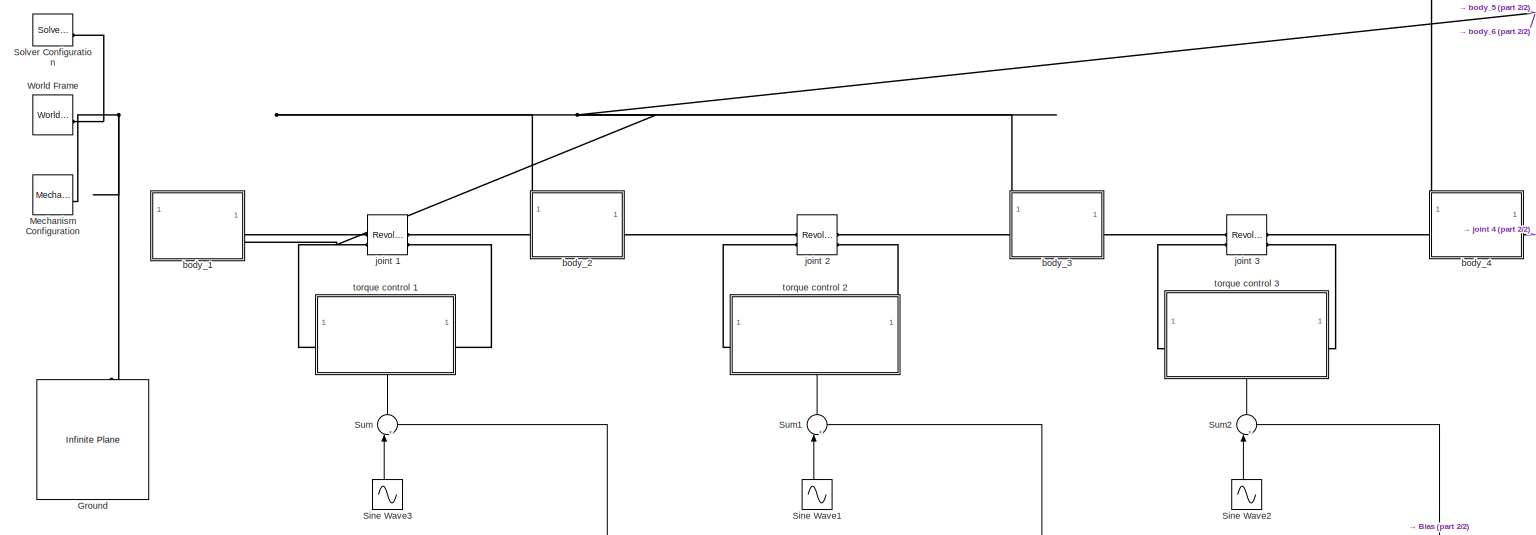
[diagram: root canvas - part 1/2, middle left region]
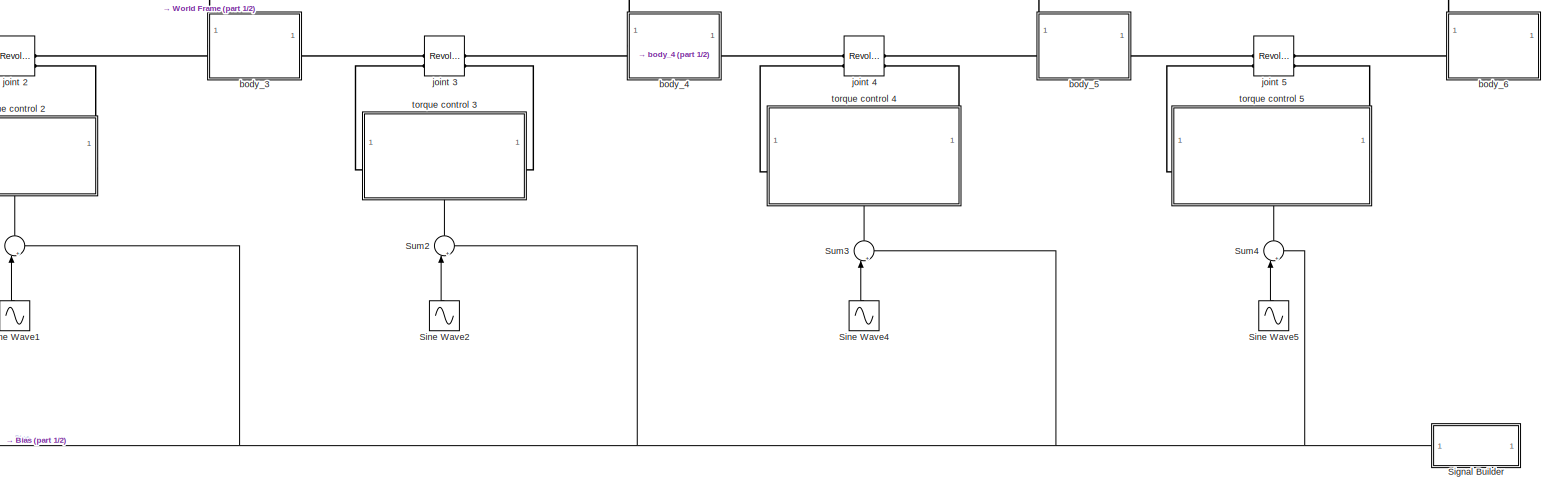
[diagram: root canvas - part 2/2, bottom center region]
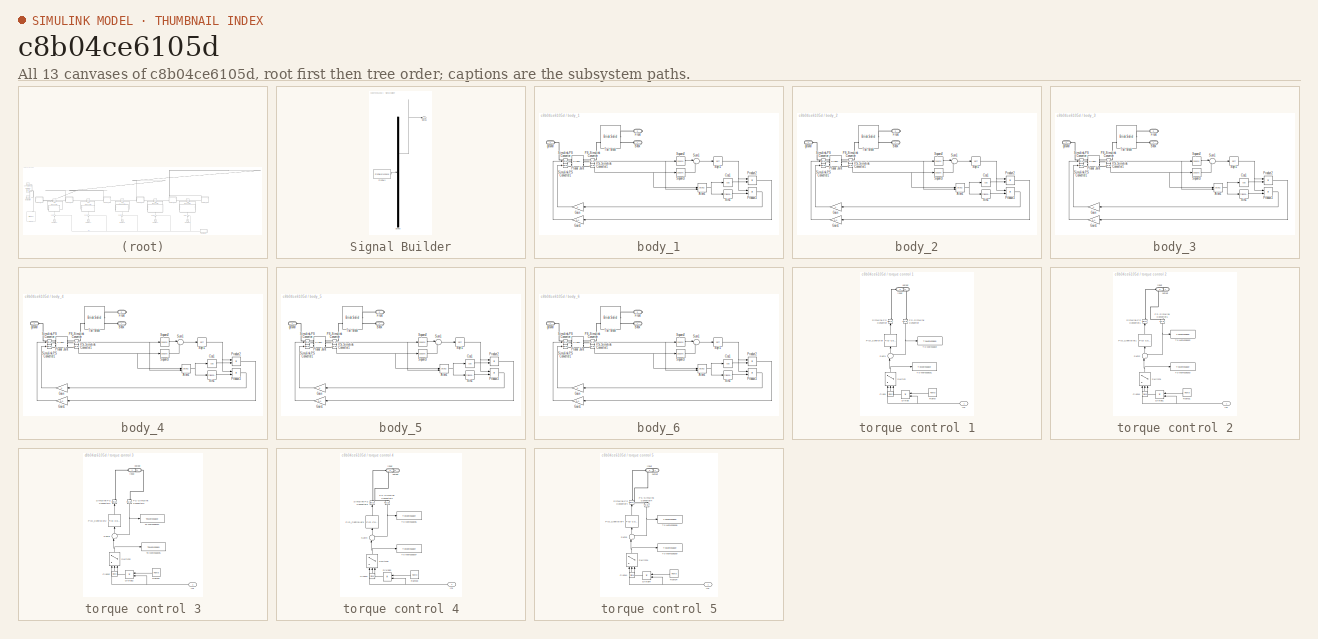
[diagram: thumbnail index - all 13 canvases of the model, root first then tree order]
MODEL slx_c8b04ce6105d
KIND model
CONFIG AbsTol = 1e-3
CONFIG EnableMultiTasking = on
CONFIG FixedStep = auto
CONFIG MaxStep = auto
CONFIG MinStep = auto
CONFIG RelTol = 1e-5
CONFIG SampleTimeConstraint = Unconstrained
CONFIG SolverName = VariableStepAuto
CONFIG StartTime = 0.0
CONFIG StopTime = 300
BLOCK [Reference] Ground  REF=sm_lib/Curves and Surfaces/Infinite Plane
  NameLocation = left
  SourceBlock = sm_lib/Curves and Surfaces/Infinite Plane
  SourceType = Infinite Plane
BLOCK [Reference] Mechanism Configuration  REF=sm_lib/Utilities/Mechanism
Configuration
  SourceBlock = sm_lib/Utilities/Mechanism\nConfiguration
  SourceType = Mechanism\nConfiguration
BLOCK [SubSystem] Signal Builder
  ClipboardFcn = sigbuilder_block('clipboard');
  CloseFcn = sigbuilder_block('close');
  ContinueFcn = sigbuilder_block('continue');
  CopyFcn = sigbuilder_block('copy');
  DeleteFcn = sigbuilder_block('delete');
  LoadFcn = sigbuilder_block('load');
  MaskHideContents = on
  ModelCloseFcn = sigbuilder_block('modelClose');
  NameChangeFcn = sigbuilder_block('namechange');
  NameLocation = top
  OpenFcn = sigbuilder_block('open',[440.4 166.8 550.8 400.2 ]);
  PauseFcn = sigbuilder_block('pause');
  PreSaveFcn = sigbuilder_block('preSave');
  StartFcn = sigbuilder_block('start');
  StopFcn = sigbuilder_block('stop');
  Tag = STV Subsys
BLOCK [Demux] Signal Builder/Demux
  DisplayOption = none
  Outputs = 1
  Tag = STV Demux
BLOCK [FromWorkspace] Signal Builder/FromWs
  Tag = STV FromWs
  VariableName = tuvar
BLOCK [Outport] Signal Builder/Signal 1
  Tag = STV Outport
BLOCK [Sin] Sine Wave1
  Amplitude = 40*pi/180
  Frequency = 2.5
  NameLocation = right
  Phase = 60*pi/180
  SampleTime = 0.01
BLOCK [Sin] Sine Wave2
  Amplitude = 40*pi/180
  Frequency = 2.5
  NameLocation = right
  Phase = 120*pi/180
  SampleTime = 0.01
BLOCK [Sin] Sine Wave3
  Amplitude = 40*pi/180
  Frequency = 2.5
  NameLocation = right
  SampleTime = 0.01
BLOCK [Sin] Sine Wave4
  Amplitude = 40*pi/180
  Frequency = 2.5
  NameLocation = right
  Phase = pi
  SampleTime = 0.01
BLOCK [Sin] Sine Wave5
  Amplitude = 40*pi/180
  Frequency = 2.5
  NameLocation = right
  Phase = 240*pi/180
  SampleTime = 0.01
BLOCK [Reference] Solver Configuration  REF=nesl_utility/Solver
Configuration
  SourceBlock = nesl_utility/Solver\nConfiguration
  SourceType = Solver\nConfiguration
BLOCK [Sum] Sum
  Inputs = |++
  NameLocation = right
BLOCK [Sum] Sum1
  Inputs = |++
  NameLocation = right
BLOCK [Sum] Sum2
  Inputs = |++
  NameLocation = right
BLOCK [Sum] Sum3
  Inputs = |++
  NameLocation = right
BLOCK [Sum] Sum4
  Inputs = |++
  NameLocation = right
BLOCK [Reference] World Frame  REF=sm_lib/Frames and
Transforms/World Frame
  SourceBlock = sm_lib/Frames and\nTransforms/World Frame
  SourceType = World Frame
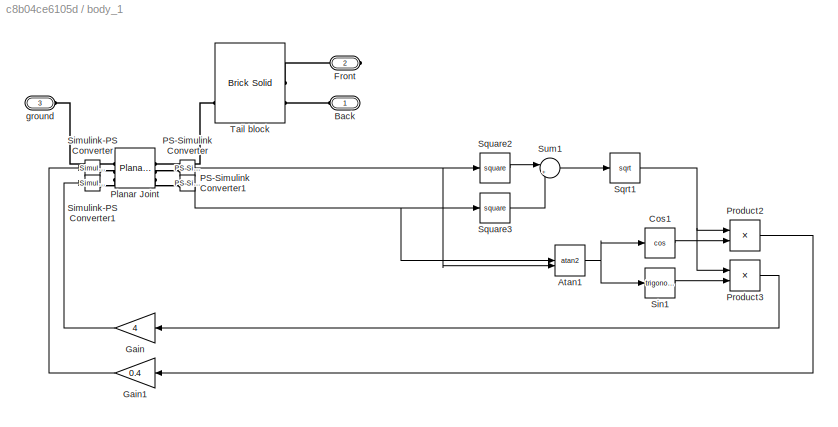
BLOCK [SubSystem] body_1
  PortSchema = {"entries":[{"content":{"sides":[{"content":{"connectorIds":["LConn1"]},"type":"ConnectorPlacement.EquallySpacedRectSide","uuid":"cfd545d0-0ca8-493e-9d9c-9574918c6216"},{"content":{"connectorIds":["RConn1"],"side":"RIGHT"},"type":"ConnectorPlacement.EquallySpacedRectSide","uuid":"f4db1f33-ebca-4648-9629-9a34821dbae4"},{"content":{"connectorIds":["LConn2"],"side":"TOP"},"type":"ConnectorPlacement.E...<+253ch>  <repeated x6 — deduplicated; at blocks: body_1, body_2, body_3, body_4, body_5, body_6>
BLOCK [Trigonometry] body_1/Atan1
  Operator = atan2
BLOCK [PMIOPort] body_1/Back
  Side = Left
BLOCK [Trigonometry] body_1/Cos1
  Operator = cos
BLOCK [PMIOPort] body_1/Front
  Port = 2
  Side = Right
BLOCK [Gain] body_1/Gain
  Gain = 4
  NameLocation = top
BLOCK [Gain] body_1/Gain1
  Gain = 0.4
  NameLocation = top
BLOCK [Reference] body_1/PS-Simulink Converter  REF=nesl_utility/PS-Simulink
Converter
  SourceBlock = nesl_utility/PS-Simulink\nConverter
  SourceType = PS-Simulink\nConverter
BLOCK [Reference] body_1/PS-Simulink Converter1  REF=nesl_utility/PS-Simulink
Converter
  SourceBlock = nesl_utility/PS-Simulink\nConverter
  SourceType = PS-Simulink\nConverter
BLOCK [Reference] body_1/Planar Joint  REF=sm_lib/Joints/Planar Joint
  SourceBlock = sm_lib/Joints/Planar Joint
  SourceType = Planar Joint
BLOCK [Product] body_1/Product2
BLOCK [Product] body_1/Product3
BLOCK [Reference] body_1/Simulink-PS Converter  REF=nesl_utility/Simulink-PS
Converter
  SourceBlock = nesl_utility/Simulink-PS\nConverter
  SourceType = Simulink-PS\nConverter
BLOCK [Reference] body_1/Simulink-PS Converter1  REF=nesl_utility/Simulink-PS
Converter
  SourceBlock = nesl_utility/Simulink-PS\nConverter
  SourceType = Simulink-PS\nConverter
BLOCK [Trigonometry] body_1/Sin1
BLOCK [Sqrt] body_1/Sqrt1
BLOCK [Math] body_1/Square2
  Operator = square
BLOCK [Math] body_1/Square3
  Operator = square
BLOCK [Sum] body_1/Sum1
  Inputs = |++
BLOCK [Reference] body_1/Tail block  REF=sm_lib/Body Elements/Brick Solid
  SourceBlock = sm_lib/Body Elements/Brick Solid
  SourceType = Brick Solid
BLOCK [PMIOPort] body_1/ground
  Port = 3
  Side = Left
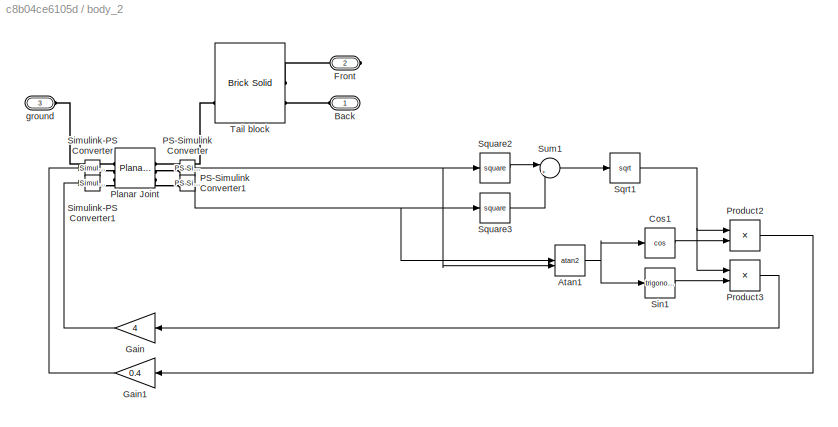
BLOCK [SubSystem] body_2
BLOCK [Trigonometry] body_2/Atan1
  Operator = atan2
BLOCK [PMIOPort] body_2/Back
  Side = Left
BLOCK [Trigonometry] body_2/Cos1
  Operator = cos
BLOCK [PMIOPort] body_2/Front
  Port = 2
  Side = Right
BLOCK [Gain] body_2/Gain
  Gain = 4
  NameLocation = top
BLOCK [Gain] body_2/Gain1
  Gain = 0.4
  NameLocation = top
BLOCK [Reference] body_2/PS-Simulink Converter  REF=nesl_utility/PS-Simulink
Converter
  SourceBlock = nesl_utility/PS-Simulink\nConverter
  SourceType = PS-Simulink\nConverter
BLOCK [Reference] body_2/PS-Simulink Converter1  REF=nesl_utility/PS-Simulink
Converter
  SourceBlock = nesl_utility/PS-Simulink\nConverter
  SourceType = PS-Simulink\nConverter
BLOCK [Reference] body_2/Planar Joint  REF=sm_lib/Joints/Planar Joint
  SourceBlock = sm_lib/Joints/Planar Joint
  SourceType = Planar Joint
BLOCK [Product] body_2/Product2
BLOCK [Product] body_2/Product3
BLOCK [Reference] body_2/Simulink-PS Converter  REF=nesl_utility/Simulink-PS
Converter
  SourceBlock = nesl_utility/Simulink-PS\nConverter
  SourceType = Simulink-PS\nConverter
BLOCK [Reference] body_2/Simulink-PS Converter1  REF=nesl_utility/Simulink-PS
Converter
  SourceBlock = nesl_utility/Simulink-PS\nConverter
  SourceType = Simulink-PS\nConverter
BLOCK [Trigonometry] body_2/Sin1
BLOCK [Sqrt] body_2/Sqrt1
BLOCK [Math] body_2/Square2
  Operator = square
BLOCK [Math] body_2/Square3
  Operator = square
BLOCK [Sum] body_2/Sum1
  Inputs = |++
BLOCK [Reference] body_2/Tail block  REF=sm_lib/Body Elements/Brick Solid
  SourceBlock = sm_lib/Body Elements/Brick Solid
  SourceType = Brick Solid
BLOCK [PMIOPort] body_2/ground
  Port = 3
  Side = Left
BLOCK [SubSystem] body_3
BLOCK [Trigonometry] body_3/Atan1
  Operator = atan2
BLOCK [PMIOPort] body_3/Back
  Side = Left
BLOCK [Trigonometry] body_3/Cos1
  Operator = cos
BLOCK [PMIOPort] body_3/Front
  Port = 2
  Side = Right
BLOCK [Gain] body_3/Gain
  Gain = 4
  NameLocation = top
BLOCK [Gain] body_3/Gain1
  Gain = 0.4
  NameLocation = top
BLOCK [Reference] body_3/PS-Simulink Converter  REF=nesl_utility/PS-Simulink
Converter
  SourceBlock = nesl_utility/PS-Simulink\nConverter
  SourceType = PS-Simulink\nConverter
BLOCK [Reference] body_3/PS-Simulink Converter1  REF=nesl_utility/PS-Simulink
Converter
  SourceBlock = nesl_utility/PS-Simulink\nConverter
  SourceType = PS-Simulink\nConverter
BLOCK [Reference] body_3/Planar Joint  REF=sm_lib/Joints/Planar Joint
  SourceBlock = sm_lib/Joints/Planar Joint
  SourceType = Planar Joint
BLOCK [Product] body_3/Product2
BLOCK [Product] body_3/Product3
BLOCK [Reference] body_3/Simulink-PS Converter  REF=nesl_utility/Simulink-PS
Converter
  SourceBlock = nesl_utility/Simulink-PS\nConverter
  SourceType = Simulink-PS\nConverter
BLOCK [Reference] body_3/Simulink-PS Converter1  REF=nesl_utility/Simulink-PS
Converter
  SourceBlock = nesl_utility/Simulink-PS\nConverter
  SourceType = Simulink-PS\nConverter
BLOCK [Trigonometry] body_3/Sin1
BLOCK [Sqrt] body_3/Sqrt1
BLOCK [Math] body_3/Square2
  Operator = square
BLOCK [Math] body_3/Square3
  Operator = square
BLOCK [Sum] body_3/Sum1
  Inputs = |++
BLOCK [Reference] body_3/Tail block  REF=sm_lib/Body Elements/Brick Solid
  SourceBlock = sm_lib/Body Elements/Brick Solid
  SourceType = Brick Solid
BLOCK [PMIOPort] body_3/ground
  Port = 3
  Side = Left
BLOCK [SubSystem] body_4
BLOCK [Trigonometry] body_4/Atan1
  Operator = atan2
BLOCK [PMIOPort] body_4/Back
  Side = Left
BLOCK [Trigonometry] body_4/Cos1
  Operator = cos
BLOCK [PMIOPort] body_4/Front
  Port = 2
  Side = Right
BLOCK [Gain] body_4/Gain
  Gain = 4
  NameLocation = top
BLOCK [Gain] body_4/Gain1
  Gain = 0.4
  NameLocation = top
BLOCK [Reference] body_4/PS-Simulink Converter  REF=nesl_utility/PS-Simulink
Converter
  SourceBlock = nesl_utility/PS-Simulink\nConverter
  SourceType = PS-Simulink\nConverter
BLOCK [Reference] body_4/PS-Simulink Converter1  REF=nesl_utility/PS-Simulink
Converter
  SourceBlock = nesl_utility/PS-Simulink\nConverter
  SourceType = PS-Simulink\nConverter
BLOCK [Reference] body_4/Planar Joint  REF=sm_lib/Joints/Planar Joint
  SourceBlock = sm_lib/Joints/Planar Joint
  SourceType = Planar Joint
BLOCK [Product] body_4/Product2
BLOCK [Product] body_4/Product3
BLOCK [Reference] body_4/Simulink-PS Converter  REF=nesl_utility/Simulink-PS
Converter
  SourceBlock = nesl_utility/Simulink-PS\nConverter
  SourceType = Simulink-PS\nConverter
BLOCK [Reference] body_4/Simulink-PS Converter1  REF=nesl_utility/Simulink-PS
Converter
  SourceBlock = nesl_utility/Simulink-PS\nConverter
  SourceType = Simulink-PS\nConverter
BLOCK [Trigonometry] body_4/Sin1
BLOCK [Sqrt] body_4/Sqrt1
BLOCK [Math] body_4/Square2
  Operator = square
BLOCK [Math] body_4/Square3
  Operator = square
BLOCK [Sum] body_4/Sum1
  Inputs = |++
BLOCK [Reference] body_4/Tail block  REF=sm_lib/Body Elements/Brick Solid
  SourceBlock = sm_lib/Body Elements/Brick Solid
  SourceType = Brick Solid
BLOCK [PMIOPort] body_4/ground
  Port = 3
  Side = Left
BLOCK [SubSystem] body_5
BLOCK [Trigonometry] body_5/Atan1
  Operator = atan2
BLOCK [PMIOPort] body_5/Back
  Side = Left
BLOCK [Trigonometry] body_5/Cos1
  Operator = cos
BLOCK [PMIOPort] body_5/Front
  Port = 2
  Side = Right
BLOCK [Gain] body_5/Gain
  Gain = 4
  NameLocation = top
BLOCK [Gain] body_5/Gain1
  Gain = 0.4
  NameLocation = top
BLOCK [Reference] body_5/PS-Simulink Converter  REF=nesl_utility/PS-Simulink
Converter
  SourceBlock = nesl_utility/PS-Simulink\nConverter
  SourceType = PS-Simulink\nConverter
BLOCK [Reference] body_5/PS-Simulink Converter1  REF=nesl_utility/PS-Simulink
Converter
  SourceBlock = nesl_utility/PS-Simulink\nConverter
  SourceType = PS-Simulink\nConverter
BLOCK [Reference] body_5/Planar Joint  REF=sm_lib/Joints/Planar Joint
  SourceBlock = sm_lib/Joints/Planar Joint
  SourceType = Planar Joint
BLOCK [Product] body_5/Product2
BLOCK [Product] body_5/Product3
BLOCK [Reference] body_5/Simulink-PS Converter  REF=nesl_utility/Simulink-PS
Converter
  SourceBlock = nesl_utility/Simulink-PS\nConverter
  SourceType = Simulink-PS\nConverter
BLOCK [Reference] body_5/Simulink-PS Converter1  REF=nesl_utility/Simulink-PS
Converter
  SourceBlock = nesl_utility/Simulink-PS\nConverter
  SourceType = Simulink-PS\nConverter
BLOCK [Trigonometry] body_5/Sin1
BLOCK [Sqrt] body_5/Sqrt1
BLOCK [Math] body_5/Square2
  Operator = square
BLOCK [Math] body_5/Square3
  Operator = square
BLOCK [Sum] body_5/Sum1
  Inputs = |++
BLOCK [Reference] body_5/Tail block  REF=sm_lib/Body Elements/Brick Solid
  SourceBlock = sm_lib/Body Elements/Brick Solid
  SourceType = Brick Solid
BLOCK [PMIOPort] body_5/ground
  Port = 3
  Side = Left
BLOCK [SubSystem] body_6
BLOCK [Trigonometry] body_6/Atan1
  Operator = atan2
BLOCK [PMIOPort] body_6/Back
  Side = Left
BLOCK [Trigonometry] body_6/Cos1
  Operator = cos
BLOCK [PMIOPort] body_6/Front
  Port = 2
  Side = Right
BLOCK [Gain] body_6/Gain
  Gain = 4
  NameLocation = top
BLOCK [Gain] body_6/Gain1
  Gain = 0.4
  NameLocation = top
BLOCK [Reference] body_6/PS-Simulink Converter  REF=nesl_utility/PS-Simulink
Converter
  SourceBlock = nesl_utility/PS-Simulink\nConverter
  SourceType = PS-Simulink\nConverter
BLOCK [Reference] body_6/PS-Simulink Converter1  REF=nesl_utility/PS-Simulink
Converter
  SourceBlock = nesl_utility/PS-Simulink\nConverter
  SourceType = PS-Simulink\nConverter
BLOCK [Reference] body_6/Planar Joint  REF=sm_lib/Joints/Planar Joint
  SourceBlock = sm_lib/Joints/Planar Joint
  SourceType = Planar Joint
BLOCK [Product] body_6/Product2
BLOCK [Product] body_6/Product3
BLOCK [Reference] body_6/Simulink-PS Converter  REF=nesl_utility/Simulink-PS
Converter
  SourceBlock = nesl_utility/Simulink-PS\nConverter
  SourceType = Simulink-PS\nConverter
BLOCK [Reference] body_6/Simulink-PS Converter1  REF=nesl_utility/Simulink-PS
Converter
  SourceBlock = nesl_utility/Simulink-PS\nConverter
  SourceType = Simulink-PS\nConverter
BLOCK [Trigonometry] body_6/Sin1
BLOCK [Sqrt] body_6/Sqrt1
BLOCK [Math] body_6/Square2
  Operator = square
BLOCK [Math] body_6/Square3
  Operator = square
BLOCK [Sum] body_6/Sum1
  Inputs = |++
BLOCK [Reference] body_6/Tail block  REF=sm_lib/Body Elements/Brick Solid
  SourceBlock = sm_lib/Body Elements/Brick Solid
  SourceType = Brick Solid
BLOCK [PMIOPort] body_6/ground
  Port = 3
  Side = Left
BLOCK [Reference] joint 1  REF=sm_lib/Joints/Revolute Joint
  SourceBlock = sm_lib/Joints/Revolute Joint
  SourceType = Revolute Joint
BLOCK [Reference] joint 2  REF=sm_lib/Joints/Revolute Joint
  SourceBlock = sm_lib/Joints/Revolute Joint
  SourceType = Revolute Joint
BLOCK [Reference] joint 3  REF=sm_lib/Joints/Revolute Joint
  SourceBlock = sm_lib/Joints/Revolute Joint
  SourceType = Revolute Joint
BLOCK [Reference] joint 4  REF=sm_lib/Joints/Revolute Joint
  SourceBlock = sm_lib/Joints/Revolute Joint
  SourceType = Revolute Joint
BLOCK [Reference] joint 5  REF=sm_lib/Joints/Revolute Joint
  SourceBlock = sm_lib/Joints/Revolute Joint
  SourceType = Revolute Joint
BLOCK [SubSystem] torque control 1
  PortSchema = {"entries":[{"content":{"sides":[{"content":{"connectorIds":["LConn1"]},"type":"ConnectorPlacement.EquallySpacedRectSide","uuid":"c3b10f57-dda1-40d5-9599-b5ff34e42a81"},{"content":{"connectorIds":["RConn1"],"side":"RIGHT"},"type":"ConnectorPlacement.EquallySpacedRectSide","uuid":"f851f931-19d5-4ec6-a78c-ff43011b4c5e"},{"content":{"connectorIds":[],"side":"TOP"},"type":"ConnectorPlacement.EquallySp...<+394ch>
BLOCK [Clock] torque control 1/Clock
  NameLocation = right
BLOCK [Product] torque control 1/Divide
  Inputs = **
  NameLocation = top
BLOCK [Inport] torque control 1/In1
BLOCK [Reference] torque control 1/PID_Controller  REF=slpidlib/PID Controller
  LibrarySourceBlock = simulink/Continuous/PID Controller
  NameLocation = right
  SourceBlock = slpidlib/PID Controller
  SourceType = PID 1dof
BLOCK [Reference] torque control 1/PS-Simulink Converter  REF=nesl_utility/PS-Simulink
Converter
  NameLocation = left
  SourceBlock = nesl_utility/PS-Simulink\nConverter
  SourceType = PS-Simulink\nConverter
BLOCK [Reference] torque control 1/Ramp  REF=simulink/Sources/Ramp
  NameLocation = top
  SourceBlock = simulink/Sources/Ramp
  SourceType = Ramp
BLOCK [Reference] torque control 1/Simulink-PS Converter  REF=nesl_utility/Simulink-PS
Converter
  NameLocation = right
  SourceBlock = nesl_utility/Simulink-PS\nConverter
  SourceType = Simulink-PS\nConverter
BLOCK [Sum] torque control 1/Sum1
  Inputs = |+-
  NameLocation = right
BLOCK [Switch] torque control 1/Switch
  InputSameDT = off
  NameLocation = right
  SaturateOnIntegerOverflow = off
  Threshold = 2
BLOCK [ToWorkspace] torque control 1/To Workspace
  FixptAsFi = on
  MaxDataPoints = inf
  SampleTime = -1
  SaveFormat = Timeseries
  VariableName = pos1
BLOCK [ToWorkspace] torque control 1/To Workspace1
  FixptAsFi = on
  MaxDataPoints = inf
  SampleTime = -1
  SaveFormat = Timeseries
  VariableName = des1
BLOCK [PMIOPort] torque control 1/input
  Port = 2
  Side = Right
BLOCK [PMIOPort] torque control 1/output
  Side = Left
BLOCK [SubSystem] torque control 2
  PortSchema = {"entries":[{"content":{"sides":[{"content":{"connectorIds":["LConn1"]},"type":"ConnectorPlacement.EquallySpacedRectSide","uuid":"d3b18d83-77b3-4cd3-8376-33c235fde2fc"},{"content":{"connectorIds":["RConn1"],"side":"RIGHT"},"type":"ConnectorPlacement.EquallySpacedRectSide","uuid":"bef515f5-fd6e-4dac-9d9f-2e7fb6963021"},{"content":{"connectorIds":[],"side":"TOP"},"type":"ConnectorPlacement.EquallySp...<+394ch>  <repeated x3 — deduplicated; at blocks: torque control 2, torque control 4, torque control 5>
BLOCK [Clock] torque control 2/Clock1
  NameLocation = right
BLOCK [Product] torque control 2/Divide1
  Inputs = **
  NameLocation = top
BLOCK [Inport] torque control 2/In1
BLOCK [Reference] torque control 2/PID_Controller1  REF=slpidlib/PID Controller
  LibrarySourceBlock = simulink/Continuous/PID Controller
  NameLocation = right
  SourceBlock = slpidlib/PID Controller
  SourceType = PID 1dof
BLOCK [Reference] torque control 2/PS-Simulink Converter1  REF=nesl_utility/PS-Simulink
Converter
  NameLocation = left
  SourceBlock = nesl_utility/PS-Simulink\nConverter
  SourceType = PS-Simulink\nConverter
BLOCK [Reference] torque control 2/Ramp1  REF=simulink/Sources/Ramp
  NameLocation = top
  SourceBlock = simulink/Sources/Ramp
  SourceType = Ramp
BLOCK [Reference] torque control 2/Simulink-PS Converter1  REF=nesl_utility/Simulink-PS
Converter
  NameLocation = right
  SourceBlock = nesl_utility/Simulink-PS\nConverter
  SourceType = Simulink-PS\nConverter
BLOCK [Sum] torque control 2/Sum2
  Inputs = |+-
  NameLocation = right
BLOCK [Switch] torque control 2/Switch1
  InputSameDT = off
  NameLocation = right
  SaturateOnIntegerOverflow = off
  Threshold = 2
BLOCK [ToWorkspace] torque control 2/To Workspace2
  FixptAsFi = on
  MaxDataPoints = inf
  SampleTime = -1
  SaveFormat = Timeseries
  VariableName = pos2
BLOCK [ToWorkspace] torque control 2/To Workspace3
  FixptAsFi = on
  MaxDataPoints = inf
  SampleTime = -1
  SaveFormat = Timeseries
  VariableName = des2
BLOCK [PMIOPort] torque control 2/input
  Port = 2
  Side = Right
BLOCK [PMIOPort] torque control 2/output
  Side = Left
BLOCK [SubSystem] torque control 3
  PortSchema = {"entries":[{"content":{"sides":[{"content":{"connectorIds":["LConn1"]},"type":"ConnectorPlacement.EquallySpacedRectSide","uuid":"c3b10f57-dda1-40d5-9599-b5ff34e42a81"},{"content":{"connectorIds":["RConn1"],"side":"RIGHT"},"type":"ConnectorPlacement.EquallySpacedRectSide","uuid":"f851f931-19d5-4ec6-a78c-ff43011b4c5e"},{"content":{"connectorIds":[],"side":"TOP"},"type":"ConnectorPlacement.EquallySp...<+394ch>
BLOCK [Clock] torque control 3/Clock2
  NameLocation = right
BLOCK [Product] torque control 3/Divide2
  Inputs = **
  NameLocation = top
BLOCK [Inport] torque control 3/In1
BLOCK [Reference] torque control 3/PID_Controller2  REF=slpidlib/PID Controller
  LibrarySourceBlock = simulink/Continuous/PID Controller
  NameLocation = right
  SourceBlock = slpidlib/PID Controller
  SourceType = PID 1dof
BLOCK [Reference] torque control 3/PS-Simulink Converter2  REF=nesl_utility/PS-Simulink
Converter
  NameLocation = left
  SourceBlock = nesl_utility/PS-Simulink\nConverter
  SourceType = PS-Simulink\nConverter
BLOCK [Reference] torque control 3/Ramp2  REF=simulink/Sources/Ramp
  NameLocation = top
  SourceBlock = simulink/Sources/Ramp
  SourceType = Ramp
BLOCK [Reference] torque control 3/Simulink-PS Converter2  REF=nesl_utility/Simulink-PS
Converter
  NameLocation = right
  SourceBlock = nesl_utility/Simulink-PS\nConverter
  SourceType = Simulink-PS\nConverter
BLOCK [Sum] torque control 3/Sum3
  Inputs = |+-
  NameLocation = right
BLOCK [Switch] torque control 3/Switch2
  InputSameDT = off
  NameLocation = right
  SaturateOnIntegerOverflow = off
  Threshold = 2
BLOCK [ToWorkspace] torque control 3/To Workspace4
  FixptAsFi = on
  MaxDataPoints = inf
  SampleTime = -1
  SaveFormat = Timeseries
  VariableName = pos3
BLOCK [ToWorkspace] torque control 3/To Workspace5
  FixptAsFi = on
  MaxDataPoints = inf
  SampleTime = -1
  SaveFormat = Timeseries
  VariableName = des3
BLOCK [PMIOPort] torque control 3/input
  Port = 2
  Side = Right
BLOCK [PMIOPort] torque control 3/output
  Side = Left
BLOCK [SubSystem] torque control 4
BLOCK [Clock] torque control 4/Clock3
  NameLocation = right
BLOCK [Product] torque control 4/Divide3
  Inputs = **
  NameLocation = top
BLOCK [Inport] torque control 4/In1
BLOCK [Reference] torque control 4/PID_Controller3  REF=slpidlib/PID Controller
  LibrarySourceBlock = simulink/Continuous/PID Controller
  NameLocation = right
  SourceBlock = slpidlib/PID Controller
  SourceType = PID 1dof
BLOCK [Reference] torque control 4/PS-Simulink Converter3  REF=nesl_utility/PS-Simulink
Converter
  NameLocation = left
  SourceBlock = nesl_utility/PS-Simulink\nConverter
  SourceType = PS-Simulink\nConverter
BLOCK [Reference] torque control 4/Ramp3  REF=simulink/Sources/Ramp
  NameLocation = top
  SourceBlock = simulink/Sources/Ramp
  SourceType = Ramp
BLOCK [Reference] torque control 4/Simulink-PS Converter3  REF=nesl_utility/Simulink-PS
Converter
  NameLocation = right
  SourceBlock = nesl_utility/Simulink-PS\nConverter
  SourceType = Simulink-PS\nConverter
BLOCK [Sum] torque control 4/Sum4
  Inputs = |+-
  NameLocation = right
BLOCK [Switch] torque control 4/Switch3
  InputSameDT = off
  NameLocation = right
  SaturateOnIntegerOverflow = off
  Threshold = 2
BLOCK [ToWorkspace] torque control 4/To Workspace6
  FixptAsFi = on
  MaxDataPoints = inf
  SampleTime = -1
  SaveFormat = Timeseries
  VariableName = pos4
BLOCK [ToWorkspace] torque control 4/To Workspace7
  FixptAsFi = on
  MaxDataPoints = inf
  SampleTime = -1
  SaveFormat = Timeseries
  VariableName = des4
BLOCK [PMIOPort] torque control 4/input
  Port = 2
  Side = Right
BLOCK [PMIOPort] torque control 4/output
  Side = Left
BLOCK [SubSystem] torque control 5
BLOCK [Clock] torque control 5/Clock4
  NameLocation = right
BLOCK [Product] torque control 5/Divide4
  Inputs = **
  NameLocation = top
BLOCK [Inport] torque control 5/In1
BLOCK [Reference] torque control 5/PID_Controller4  REF=slpidlib/PID Controller
  LibrarySourceBlock = simulink/Continuous/PID Controller
  NameLocation = right
  SourceBlock = slpidlib/PID Controller
  SourceType = PID 1dof
BLOCK [Reference] torque control 5/PS-Simulink Converter4  REF=nesl_utility/PS-Simulink
Converter
  NameLocation = left
  SourceBlock = nesl_utility/PS-Simulink\nConverter
  SourceType = PS-Simulink\nConverter
BLOCK [Reference] torque control 5/Ramp4  REF=simulink/Sources/Ramp
  NameLocation = top
  SourceBlock = simulink/Sources/Ramp
  SourceType = Ramp
BLOCK [Reference] torque control 5/Simulink-PS Converter4  REF=nesl_utility/Simulink-PS
Converter
  NameLocation = right
  SourceBlock = nesl_utility/Simulink-PS\nConverter
  SourceType = Simulink-PS\nConverter
BLOCK [Sum] torque control 5/Sum5
  Inputs = |+-
  NameLocation = right
BLOCK [Switch] torque control 5/Switch4
  InputSameDT = off
  NameLocation = right
  SaturateOnIntegerOverflow = off
  Threshold = 2
BLOCK [ToWorkspace] torque control 5/To Workspace8
  FixptAsFi = on
  MaxDataPoints = inf
  SampleTime = -1
  SaveFormat = Timeseries
  VariableName = pos5
BLOCK [ToWorkspace] torque control 5/To Workspace9
  FixptAsFi = on
  MaxDataPoints = inf
  SampleTime = -1
  SaveFormat = Timeseries
  VariableName = des5
BLOCK [PMIOPort] torque control 5/input
  Port = 2
  Side = Right
BLOCK [PMIOPort] torque control 5/output
  Side = Left
NET Signal Builder:1 -> Sum1:2, Sum2:2, Sum3:2, Sum4:2, Sum:2
LINE Sine Wave1:1 -> Sum1:1
LINE Sine Wave2:1 -> Sum2:1
LINE Sine Wave3:1 -> Sum:1
LINE Sine Wave4:1 -> Sum3:1
LINE Sine Wave5:1 -> Sum4:1
LINE Sum1:1 -> torque control 2:1
LINE Sum2:1 -> torque control 3:1
LINE Sum3:1 -> torque control 4:1
LINE Sum4:1 -> torque control 5:1
LINE Sum:1 -> torque control 1:1
NET body_1/Atan1:1 -> body_1/Cos1:1, body_1/Sin1:1
LINE body_1/Cos1:1 -> body_1/Product2:2
LINE body_1/Gain1:1 -> body_1/Simulink-PS Converter:1
LINE body_1/Gain:1 -> body_1/Simulink-PS Converter1:1
NET body_1/PS-Simulink Converter1:1 -> body_1/Atan1:1, body_1/Square3:1
NET body_1/PS-Simulink Converter:1 -> body_1/Atan1:2, body_1/Square2:1
LINE body_1/Product2:1 -> body_1/Gain1:1
LINE body_1/Product3:1 -> body_1/Gain:1
LINE body_1/Sin1:1 -> body_1/Product3:2
NET body_1/Sqrt1:1 -> body_1/Product2:1, body_1/Product3:1
LINE body_1/Square2:1 -> body_1/Sum1:1
LINE body_1/Square3:1 -> body_1/Sum1:2
LINE body_1/Sum1:1 -> body_1/Sqrt1:1
NET body_2/Atan1:1 -> body_2/Cos1:1, body_2/Sin1:1
LINE body_2/Cos1:1 -> body_2/Product2:2
LINE body_2/Gain1:1 -> body_2/Simulink-PS Converter:1
LINE body_2/Gain:1 -> body_2/Simulink-PS Converter1:1
NET body_2/PS-Simulink Converter1:1 -> body_2/Atan1:1, body_2/Square3:1
NET body_2/PS-Simulink Converter:1 -> body_2/Atan1:2, body_2/Square2:1
LINE body_2/Product2:1 -> body_2/Gain1:1
LINE body_2/Product3:1 -> body_2/Gain:1
LINE body_2/Sin1:1 -> body_2/Product3:2
NET body_2/Sqrt1:1 -> body_2/Product2:1, body_2/Product3:1
LINE body_2/Square2:1 -> body_2/Sum1:1
LINE body_2/Square3:1 -> body_2/Sum1:2
LINE body_2/Sum1:1 -> body_2/Sqrt1:1
NET body_3/Atan1:1 -> body_3/Cos1:1, body_3/Sin1:1
LINE body_3/Cos1:1 -> body_3/Product2:2
LINE body_3/Gain1:1 -> body_3/Simulink-PS Converter:1
LINE body_3/Gain:1 -> body_3/Simulink-PS Converter1:1
NET body_3/PS-Simulink Converter1:1 -> body_3/Atan1:1, body_3/Square3:1
NET body_3/PS-Simulink Converter:1 -> body_3/Atan1:2, body_3/Square2:1
LINE body_3/Product2:1 -> body_3/Gain1:1
LINE body_3/Product3:1 -> body_3/Gain:1
LINE body_3/Sin1:1 -> body_3/Product3:2
NET body_3/Sqrt1:1 -> body_3/Product2:1, body_3/Product3:1
LINE body_3/Square2:1 -> body_3/Sum1:1
LINE body_3/Square3:1 -> body_3/Sum1:2
LINE body_3/Sum1:1 -> body_3/Sqrt1:1
NET body_4/Atan1:1 -> body_4/Cos1:1, body_4/Sin1:1
LINE body_4/Cos1:1 -> body_4/Product2:2
LINE body_4/Gain1:1 -> body_4/Simulink-PS Converter:1
LINE body_4/Gain:1 -> body_4/Simulink-PS Converter1:1
NET body_4/PS-Simulink Converter1:1 -> body_4/Atan1:1, body_4/Square3:1
NET body_4/PS-Simulink Converter:1 -> body_4/Atan1:2, body_4/Square2:1
LINE body_4/Product2:1 -> body_4/Gain1:1
LINE body_4/Product3:1 -> body_4/Gain:1
LINE body_4/Sin1:1 -> body_4/Product3:2
NET body_4/Sqrt1:1 -> body_4/Product2:1, body_4/Product3:1
LINE body_4/Square2:1 -> body_4/Sum1:1
LINE body_4/Square3:1 -> body_4/Sum1:2
LINE body_4/Sum1:1 -> body_4/Sqrt1:1
NET body_5/Atan1:1 -> body_5/Cos1:1, body_5/Sin1:1
LINE body_5/Cos1:1 -> body_5/Product2:2
LINE body_5/Gain1:1 -> body_5/Simulink-PS Converter:1
LINE body_5/Gain:1 -> body_5/Simulink-PS Converter1:1
NET body_5/PS-Simulink Converter1:1 -> body_5/Atan1:1, body_5/Square3:1
NET body_5/PS-Simulink Converter:1 -> body_5/Atan1:2, body_5/Square2:1
LINE body_5/Product2:1 -> body_5/Gain1:1
LINE body_5/Product3:1 -> body_5/Gain:1
LINE body_5/Sin1:1 -> body_5/Product3:2
NET body_5/Sqrt1:1 -> body_5/Product2:1, body_5/Product3:1
LINE body_5/Square2:1 -> body_5/Sum1:1
LINE body_5/Square3:1 -> body_5/Sum1:2
LINE body_5/Sum1:1 -> body_5/Sqrt1:1
NET body_6/Atan1:1 -> body_6/Cos1:1, body_6/Sin1:1
LINE body_6/Cos1:1 -> body_6/Product2:2
LINE body_6/Gain1:1 -> body_6/Simulink-PS Converter:1
LINE body_6/Gain:1 -> body_6/Simulink-PS Converter1:1
NET body_6/PS-Simulink Converter1:1 -> body_6/Atan1:1, body_6/Square3:1
NET body_6/PS-Simulink Converter:1 -> body_6/Atan1:2, body_6/Square2:1
LINE body_6/Product2:1 -> body_6/Gain1:1
LINE body_6/Product3:1 -> body_6/Gain:1
LINE body_6/Sin1:1 -> body_6/Product3:2
NET body_6/Sqrt1:1 -> body_6/Product2:1, body_6/Product3:1
LINE body_6/Square2:1 -> body_6/Sum1:1
LINE body_6/Square3:1 -> body_6/Sum1:2
LINE body_6/Sum1:1 -> body_6/Sqrt1:1
LINE torque control 1/Clock:1 -> torque control 1/Switch:2
LINE torque control 1/Divide:1 -> torque control 1/Switch:3
NET torque control 1/In1:1 -> torque control 1/Divide:2, torque control 1/Switch:1
LINE torque control 1/PID_Controller:1 -> torque control 1/Simulink-PS Converter:1
NET torque control 1/PS-Simulink Converter:1 -> torque control 1/Sum1:2, torque control 1/To Workspace:1
LINE torque control 1/Ramp:1 -> torque control 1/Divide:1
LINE torque control 1/Sum1:1 -> torque control 1/PID_Controller:1
NET torque control 1/Switch:1 -> torque control 1/Sum1:1, torque control 1/To Workspace1:1
LINE torque control 2/Clock1:1 -> torque control 2/Switch1:2
LINE torque control 2/Divide1:1 -> torque control 2/Switch1:3
NET torque control 2/In1:1 -> torque control 2/Divide1:2, torque control 2/Switch1:1
LINE torque control 2/PID_Controller1:1 -> torque control 2/Simulink-PS Converter1:1
NET torque control 2/PS-Simulink Converter1:1 -> torque control 2/Sum2:2, torque control 2/To Workspace2:1
LINE torque control 2/Ramp1:1 -> torque control 2/Divide1:1
LINE torque control 2/Sum2:1 -> torque control 2/PID_Controller1:1
NET torque control 2/Switch1:1 -> torque control 2/Sum2:1, torque control 2/To Workspace3:1
LINE torque control 3/Clock2:1 -> torque control 3/Switch2:2
LINE torque control 3/Divide2:1 -> torque control 3/Switch2:3
NET torque control 3/In1:1 -> torque control 3/Divide2:2, torque control 3/Switch2:1
LINE torque control 3/PID_Controller2:1 -> torque control 3/Simulink-PS Converter2:1
NET torque control 3/PS-Simulink Converter2:1 -> torque control 3/Sum3:2, torque control 3/To Workspace4:1
LINE torque control 3/Ramp2:1 -> torque control 3/Divide2:1
LINE torque control 3/Sum3:1 -> torque control 3/PID_Controller2:1
NET torque control 3/Switch2:1 -> torque control 3/Sum3:1, torque control 3/To Workspace5:1
LINE torque control 4/Clock3:1 -> torque control 4/Switch3:2
LINE torque control 4/Divide3:1 -> torque control 4/Switch3:3
NET torque control 4/In1:1 -> torque control 4/Divide3:2, torque control 4/Switch3:1
LINE torque control 4/PID_Controller3:1 -> torque control 4/Simulink-PS Converter3:1
NET torque control 4/PS-Simulink Converter3:1 -> torque control 4/Sum4:2, torque control 4/To Workspace6:1
LINE torque control 4/Ramp3:1 -> torque control 4/Divide3:1
LINE torque control 4/Sum4:1 -> torque control 4/PID_Controller3:1
NET torque control 4/Switch3:1 -> torque control 4/Sum4:1, torque control 4/To Workspace7:1
LINE torque control 5/Clock4:1 -> torque control 5/Switch4:2
LINE torque control 5/Divide4:1 -> torque control 5/Switch4:3
NET torque control 5/In1:1 -> torque control 5/Divide4:2, torque control 5/Switch4:1
LINE torque control 5/PID_Controller4:1 -> torque control 5/Simulink-PS Converter4:1
NET torque control 5/PS-Simulink Converter4:1 -> torque control 5/Sum5:2, torque control 5/To Workspace8:1
LINE torque control 5/Ramp4:1 -> torque control 5/Divide4:1
LINE torque control 5/Sum5:1 -> torque control 5/PID_Controller4:1
NET torque control 5/Switch4:1 -> torque control 5/Sum5:1, torque control 5/To Workspace9:1
PNET net1: Ground:LConn1 -- Mechanism Configuration:RConn1 -- Solver Configuration:RConn1 -- World Frame:RConn1 -- body_1:LConn2 -- body_2:LConn2 -- body_3:LConn2 -- body_4:LConn2 -- body_5:LConn2 -- body_6:LConn2
PLINE body_1/Back:RConn1 -- body_1/Tail block:LConn2
PLINE body_1/Front:RConn1 -- body_1/Tail block:LConn1
PLINE body_1/PS-Simulink Converter1:LConn1 -- body_1/Planar Joint:RConn3
PLINE body_1/PS-Simulink Converter:LConn1 -- body_1/Planar Joint:RConn2
PLINE body_1/Planar Joint:LConn1 -- body_1/ground:RConn1
PLINE body_1/Planar Joint:LConn2 -- body_1/Simulink-PS Converter:RConn1
PLINE body_1/Planar Joint:LConn3 -- body_1/Simulink-PS Converter1:RConn1
PLINE body_1/Planar Joint:RConn1 -- body_1/Tail block:RConn2
PLINE body_1:RConn1 -- joint 1:LConn1
PLINE body_2/Back:RConn1 -- body_2/Tail block:LConn2
PLINE body_2/Front:RConn1 -- body_2/Tail block:LConn1
PLINE body_2/PS-Simulink Converter1:LConn1 -- body_2/Planar Joint:RConn3
PLINE body_2/PS-Simulink Converter:LConn1 -- body_2/Planar Joint:RConn2
PLINE body_2/Planar Joint:LConn1 -- body_2/ground:RConn1
PLINE body_2/Planar Joint:LConn2 -- body_2/Simulink-PS Converter:RConn1
PLINE body_2/Planar Joint:LConn3 -- body_2/Simulink-PS Converter1:RConn1
PLINE body_2/Planar Joint:RConn1 -- body_2/Tail block:RConn2
PLINE body_2:LConn1 -- joint 1:RConn1
PLINE body_2:RConn1 -- joint 2:LConn1
PLINE body_3/Back:RConn1 -- body_3/Tail block:LConn2
PLINE body_3/Front:RConn1 -- body_3/Tail block:LConn1
PLINE body_3/PS-Simulink Converter1:LConn1 -- body_3/Planar Joint:RConn3
PLINE body_3/PS-Simulink Converter:LConn1 -- body_3/Planar Joint:RConn2
PLINE body_3/Planar Joint:LConn1 -- body_3/ground:RConn1
PLINE body_3/Planar Joint:LConn2 -- body_3/Simulink-PS Converter:RConn1
PLINE body_3/Planar Joint:LConn3 -- body_3/Simulink-PS Converter1:RConn1
PLINE body_3/Planar Joint:RConn1 -- body_3/Tail block:RConn2
PLINE body_3:LConn1 -- joint 2:RConn1
PLINE body_3:RConn1 -- joint 3:LConn1
PLINE body_4/Back:RConn1 -- body_4/Tail block:LConn2
PLINE body_4/Front:RConn1 -- body_4/Tail block:LConn1
PLINE body_4/PS-Simulink Converter1:LConn1 -- body_4/Planar Joint:RConn3
PLINE body_4/PS-Simulink Converter:LConn1 -- body_4/Planar Joint:RConn2
PLINE body_4/Planar Joint:LConn1 -- body_4/ground:RConn1
PLINE body_4/Planar Joint:LConn2 -- body_4/Simulink-PS Converter:RConn1
PLINE body_4/Planar Joint:LConn3 -- body_4/Simulink-PS Converter1:RConn1
PLINE body_4/Planar Joint:RConn1 -- body_4/Tail block:RConn2
PLINE body_4:LConn1 -- joint 3:RConn1
PLINE body_4:RConn1 -- joint 4:LConn1
PLINE body_5/Back:RConn1 -- body_5/Tail block:LConn2
PLINE body_5/Front:RConn1 -- body_5/Tail block:LConn1
PLINE body_5/PS-Simulink Converter1:LConn1 -- body_5/Planar Joint:RConn3
PLINE body_5/PS-Simulink Converter:LConn1 -- body_5/Planar Joint:RConn2
PLINE body_5/Planar Joint:LConn1 -- body_5/ground:RConn1
PLINE body_5/Planar Joint:LConn2 -- body_5/Simulink-PS Converter:RConn1
PLINE body_5/Planar Joint:LConn3 -- body_5/Simulink-PS Converter1:RConn1
PLINE body_5/Planar Joint:RConn1 -- body_5/Tail block:RConn2
PLINE body_5:LConn1 -- joint 4:RConn1
PLINE body_5:RConn1 -- joint 5:LConn1
PLINE body_6/Back:RConn1 -- body_6/Tail block:LConn2
PLINE body_6/Front:RConn1 -- body_6/Tail block:LConn1
PLINE body_6/PS-Simulink Converter1:LConn1 -- body_6/Planar Joint:RConn3
PLINE body_6/PS-Simulink Converter:LConn1 -- body_6/Planar Joint:RConn2
PLINE body_6/Planar Joint:LConn1 -- body_6/ground:RConn1
PLINE body_6/Planar Joint:LConn2 -- body_6/Simulink-PS Converter:RConn1
PLINE body_6/Planar Joint:LConn3 -- body_6/Simulink-PS Converter1:RConn1
PLINE body_6/Planar Joint:RConn1 -- body_6/Tail block:RConn2
PLINE body_6:LConn1 -- joint 5:RConn1
PLINE joint 1:LConn2 -- torque control 1:LConn1
PLINE joint 1:RConn2 -- torque control 1:RConn1
PLINE joint 2:LConn2 -- torque control 2:LConn1
PLINE joint 2:RConn2 -- torque control 2:RConn1
PLINE joint 3:LConn2 -- torque control 3:LConn1
PLINE joint 3:RConn2 -- torque control 3:RConn1
PLINE joint 4:LConn2 -- torque control 4:LConn1
PLINE joint 4:RConn2 -- torque control 4:RConn1
PLINE joint 5:LConn2 -- torque control 5:LConn1
PLINE joint 5:RConn2 -- torque control 5:RConn1
PLINE torque control 1/PS-Simulink Converter:LConn1 -- torque control 1/input:RConn1
PLINE torque control 1/Simulink-PS Converter:RConn1 -- torque control 1/output:RConn1
PLINE torque control 2/PS-Simulink Converter1:LConn1 -- torque control 2/input:RConn1
PLINE torque control 2/Simulink-PS Converter1:RConn1 -- torque control 2/output:RConn1
PLINE torque control 3/PS-Simulink Converter2:LConn1 -- torque control 3/input:RConn1
PLINE torque control 3/Simulink-PS Converter2:RConn1 -- torque control 3/output:RConn1
PLINE torque control 4/PS-Simulink Converter3:LConn1 -- torque control 4/input:RConn1
PLINE torque control 4/Simulink-PS Converter3:RConn1 -- torque control 4/output:RConn1
PLINE torque control 5/PS-Simulink Converter4:LConn1 -- torque control 5/input:RConn1
PLINE torque control 5/Simulink-PS Converter4:RConn1 -- torque control 5/output:RConn1
note: NET lines group one-source signal fan-out (src -> all destinations, sorted); 1:1 wires keep LINE; PNET lines group multi-terminal physical nets as a canonical sorted terminal list (undirected conserving connections); 2-terminal nets keep the pairwise PLINE form
